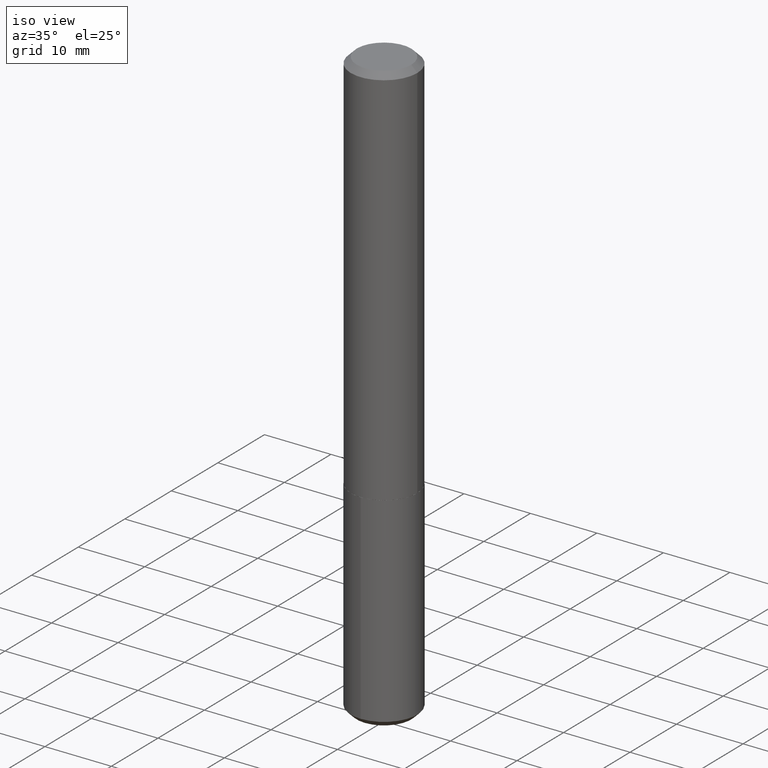
[diagram: clean part render]
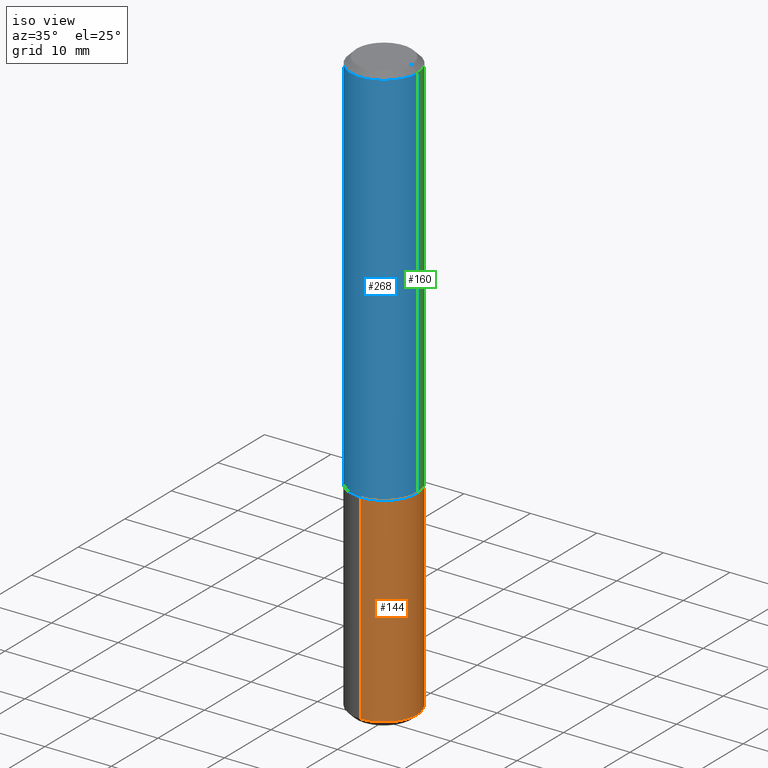
[diagram: same view with three faces highlighted in distinct colors, each labeled with its STEP entity id]
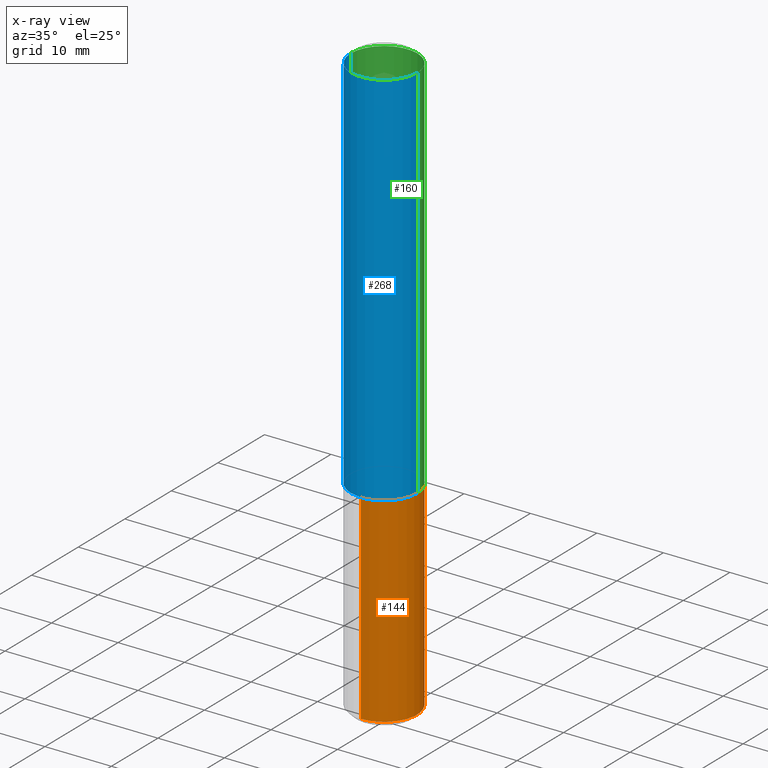
[diagram: x-ray of the same camera — body ghosted, the three highlighted faces saturated]
A machine part, iso view with three faces highlighted in distinct colors.
The next image is the same camera in x-ray (body ghosted, the three faces saturated) — at least one of them is partly hidden behind the body in this view.
Their STEP definitions:

[orange] entity #144 — the highlighted cylindrical surface (partial cylindrical patch) has radius 5 mm, axis along (-0, 0, 1).
#3 = VERTEX_POINT ( 'NONE', #251 ) ;
#15 = EDGE_CURVE ( 'NONE', #145, #243, #375, .T. ) ;
#20 = EDGE_CURVE ( 'NONE', #145, #3, #345, .T. ) ;
#22 = AXIS2_PLACEMENT_3D ( 'NONE', #86, #404, #312 ) ;
#23 = DIRECTION ( 'NONE',  ( -2.451305406586192978E-29, 3.483122994870167634E-15, 1.000000000000000000 ) ) ;
#28 = DIRECTION ( 'NONE',  ( -2.451305406586193258E-29, 3.483122994870168029E-15, 1.000000000000000000 ) ) ;
#41 = ORIENTED_EDGE ( 'NONE', *, *, #15, .T. ) ;
#47 = ORIENTED_EDGE ( 'NONE', *, *, #380, .T. ) ;
#79 = EDGE_CURVE ( 'NONE', #3, #307, #137, .T. ) ;
#86 = CARTESIAN_POINT ( 'NONE',  ( 8.490006031551072042E-29, -1.210169079953302144E-14, -3.468899999999999650 ) ) ;
#89 = LINE ( 'NONE', #226, #236 ) ;
#98 = VECTOR ( 'NONE', #122, 39.37007874015748143 ) ;
#122 = DIRECTION ( 'NONE',  ( -2.451305406586192978E-29, 3.483122994870167634E-15, 1.000000000000000000 ) ) ;
#137 = CIRCLE ( 'NONE', #235, 0.1968500000000000250 ) ;
#144 = ADVANCED_FACE ( 'NONE', ( #161 ), #290, .T. ) ;
#145 = VERTEX_POINT ( 'NONE', #326 ) ;
#161 = FACE_OUTER_BOUND ( 'NONE', #280, .T. ) ;
#162 = CARTESIAN_POINT ( 'NONE',  ( 5.583983472043140562E-29, -7.972448489114438042E-15, -2.283399999999999874 ) ) ;
#171 = CARTESIAN_POINT ( 'NONE',  ( 1.398703375343841999E-15, 0.1968499999999920591, -2.283400000000000762 ) ) ;
#187 = CARTESIAN_POINT ( 'NONE',  ( -1.374596203102485599E-15, -0.1968500000000079631, -2.283399999999998986 ) ) ;
#194 = DIRECTION ( 'NONE',  ( -6.982962677686265133E-15, -1.000000000000000000, 4.163344669033674845E-15 ) ) ;
#226 = CARTESIAN_POINT ( 'NONE',  ( 1.398703375343812811E-15, 0.1968499999999920591, -2.283400000000000762 ) ) ;
#235 = AXIS2_PLACEMENT_3D ( 'NONE', #259, #257, #315 ) ;
#236 = VECTOR ( 'NONE', #23, 39.37007874015748143 ) ;
#243 = VERTEX_POINT ( 'NONE', #244 ) ;
#244 = CARTESIAN_POINT ( 'NONE',  ( 1.398703375343841012E-15, 0.1968499999999877847, -3.468900000000000095 ) ) ;
#251 = CARTESIAN_POINT ( 'NONE',  ( -1.374596203102485599E-15, -0.1968500000000079631, -2.283399999999998986 ) ) ;
#257 = DIRECTION ( 'NONE',  ( -2.451305406586193258E-29, 3.483122994870168029E-15, 1.000000000000000000 ) ) ;
#259 = CARTESIAN_POINT ( 'NONE',  ( 5.583983472043140562E-29, -7.972448489114438042E-15, -2.283399999999999874 ) ) ;
#280 = EDGE_LOOP ( 'NONE', ( #41, #47, #309, #304 ) ) ;
#290 = CYLINDRICAL_SURFACE ( 'NONE', #338, 0.1968500000000000250 ) ;
#304 = ORIENTED_EDGE ( 'NONE', *, *, #20, .F. ) ;
#307 = VERTEX_POINT ( 'NONE', #171 ) ;
#309 = ORIENTED_EDGE ( 'NONE', *, *, #79, .F. ) ;
#312 = DIRECTION ( 'NONE',  ( -6.982962677686265133E-15, -1.000000000000000000, 2.775563112689116301E-15 ) ) ;
#315 = DIRECTION ( 'NONE',  ( -6.982962677686265133E-15, -1.000000000000000000, 4.163344669033674845E-15 ) ) ;
#326 = CARTESIAN_POINT ( 'NONE',  ( -1.374596203102457595E-15, -0.1968500000000122374, -3.468899999999999206 ) ) ;
#338 = AXIS2_PLACEMENT_3D ( 'NONE', #162, #28, #194 ) ;
#345 = LINE ( 'NONE', #187, #98 ) ;
#375 = CIRCLE ( 'NONE', #22, 0.1968500000000000250 ) ;
#380 = EDGE_CURVE ( 'NONE', #243, #307, #89, .T. ) ;
#404 = DIRECTION ( 'NONE',  ( -2.451305406586193258E-29, 3.483122994870168029E-15, 1.000000000000000000 ) ) ;

[blue] entity #268 — the highlighted cylindrical surface (partial cylindrical patch) has radius 5 mm, axis along (-0, 0, 1).
#2 = FACE_OUTER_BOUND ( 'NONE', #52, .T. ) ;
#11 = VERTEX_POINT ( 'NONE', #373 ) ;
#36 = CARTESIAN_POINT ( 'NONE',  ( 5.582760737640047761E-29, -7.970702748445015750E-15, -2.282899999999999707 ) ) ;
#49 = EDGE_CURVE ( 'NONE', #372, #371, #354, .T. ) ;
#52 = EDGE_LOOP ( 'NONE', ( #153, #175, #146, #284 ) ) ;
#56 = CARTESIAN_POINT ( 'NONE',  ( -0.1968500000000001915, 1.398703375343758577E-15, -9.682923725166790684E-30 ) ) ;
#77 = DIRECTION ( 'NONE',  ( 1.000000000000000000, -6.982962677686265922E-15, 0.000000000000000000 ) ) ;
#96 = DIRECTION ( 'NONE',  ( -2.445468806185136877E-29, 3.491481338843145188E-15, 1.000000000000000000 ) ) ;
#117 = EDGE_CURVE ( 'NONE', #11, #219, #347, .T. ) ;
#139 = CIRCLE ( 'NONE', #346, 0.1968500000000000250 ) ;
#146 = ORIENTED_EDGE ( 'NONE', *, *, #117, .T. ) ;
#148 = AXIS2_PLACEMENT_3D ( 'NONE', #275, #366, #369 ) ;
#153 = ORIENTED_EDGE ( 'NONE', *, *, #49, .F. ) ;
#174 = CARTESIAN_POINT ( 'NONE',  ( 8.559140821648035612E-31, -1.222018468595109198E-16, -0.03500000000000023231 ) ) ;
#175 = ORIENTED_EDGE ( 'NONE', *, *, #306, .T. ) ;
#179 = DIRECTION ( 'NONE',  ( -2.445468806185136597E-29, 3.491481338843145583E-15, 1.000000000000000000 ) ) ;
#183 = VECTOR ( 'NONE', #96, 39.37007874015748143 ) ;
#191 = VECTOR ( 'NONE', #323, 39.37007874015748143 ) ;
#203 = AXIS2_PLACEMENT_3D ( 'NONE', #36, #179, #299 ) ;
#219 = VERTEX_POINT ( 'NONE', #340 ) ;
#252 = CARTESIAN_POINT ( 'NONE',  ( -0.1968500000000000250, -2.647748922308503107E-15, -0.03500000000000023231 ) ) ;
#268 = ADVANCED_FACE ( 'NONE', ( #2 ), #359, .T. ) ;
#275 = CARTESIAN_POINT ( 'NONE',  ( 0.000000000000000000, 0.000000000000000000, 0.000000000000000000 ) ) ;
#284 = ORIENTED_EDGE ( 'NONE', *, *, #328, .F. ) ;
#299 = DIRECTION ( 'NONE',  ( 1.000000000000000000, -6.982962677686261977E-15, 0.000000000000000000 ) ) ;
#302 = DIRECTION ( 'NONE',  ( -2.445468806185136597E-29, 3.491481338843145583E-15, 1.000000000000000000 ) ) ;
#306 = EDGE_CURVE ( 'NONE', #372, #11, #393, .T. ) ;
#323 = DIRECTION ( 'NONE',  ( -2.445468806185136877E-29, 3.491481338843145188E-15, 1.000000000000000000 ) ) ;
#328 = EDGE_CURVE ( 'NONE', #371, #219, #139, .T. ) ;
#340 = CARTESIAN_POINT ( 'NONE',  ( 0.1968500000000000250, -1.496798049962052577E-15, -0.03500000000000023231 ) ) ;
#346 = AXIS2_PLACEMENT_3D ( 'NONE', #174, #302, #77 ) ;
#347 = LINE ( 'NONE', #411, #191 ) ;
#354 = LINE ( 'NONE', #56, #183 ) ;
#359 = CYLINDRICAL_SURFACE ( 'NONE', #148, 0.1968500000000001915 ) ;
#366 = DIRECTION ( 'NONE',  ( -2.445468806185136597E-29, 3.491481338843145583E-15, 1.000000000000000000 ) ) ;
#369 = DIRECTION ( 'NONE',  ( 1.000000000000000000, -6.982962677686266711E-15, 4.876176775795935793E-29 ) ) ;
#371 = VERTEX_POINT ( 'NONE', #252 ) ;
#372 = VERTEX_POINT ( 'NONE', #376 ) ;
#373 = CARTESIAN_POINT ( 'NONE',  ( 0.1968500000000003303, -9.345298951547558936E-15, -2.282899999999999707 ) ) ;
#376 = CARTESIAN_POINT ( 'NONE',  ( -0.1968500000000003303, -6.571999373101257173E-15, -2.282899999999999707 ) ) ;
#393 = CIRCLE ( 'NONE', #203, 0.1968500000000003303 ) ;
#411 = CARTESIAN_POINT ( 'NONE',  ( 0.1968500000000001915, -1.374596203102542989E-15, 9.598753983154309266E-30 ) ) ;

[green] entity #160 — the highlighted cylindrical surface (partial cylindrical patch) has radius 5 mm, axis along (-0, 0, 1).
#11 = VERTEX_POINT ( 'NONE', #373 ) ;
#37 = ORIENTED_EDGE ( 'NONE', *, *, #133, .F. ) ;
#49 = EDGE_CURVE ( 'NONE', #372, #371, #354, .T. ) ;
#56 = CARTESIAN_POINT ( 'NONE',  ( -0.1968500000000001915, 1.398703375343758577E-15, -9.682923725166790684E-30 ) ) ;
#96 = DIRECTION ( 'NONE',  ( -2.445468806185136877E-29, 3.491481338843145188E-15, 1.000000000000000000 ) ) ;
#101 = DIRECTION ( 'NONE',  ( 1.000000000000000000, -6.982962677686266711E-15, 4.876176775795935793E-29 ) ) ;
#113 = EDGE_CURVE ( 'NONE', #11, #372, #325, .T. ) ;
#117 = EDGE_CURVE ( 'NONE', #11, #219, #347, .T. ) ;
#128 = CARTESIAN_POINT ( 'NONE',  ( 0.000000000000000000, 0.000000000000000000, 0.000000000000000000 ) ) ;
#133 = EDGE_CURVE ( 'NONE', #219, #371, #333, .T. ) ;
#155 = CARTESIAN_POINT ( 'NONE',  ( 5.582760737640047761E-29, -7.970702748445015750E-15, -2.282899999999999707 ) ) ;
#160 = ADVANCED_FACE ( 'NONE', ( #408 ), #295, .T. ) ;
#177 = ORIENTED_EDGE ( 'NONE', *, *, #113, .T. ) ;
#183 = VECTOR ( 'NONE', #96, 39.37007874015748143 ) ;
#191 = VECTOR ( 'NONE', #323, 39.37007874015748143 ) ;
#200 = AXIS2_PLACEMENT_3D ( 'NONE', #382, #287, #229 ) ;
#209 = EDGE_LOOP ( 'NONE', ( #177, #401, #37, #378 ) ) ;
#219 = VERTEX_POINT ( 'NONE', #340 ) ;
#229 = DIRECTION ( 'NONE',  ( 1.000000000000000000, -6.982962677686265922E-15, 0.000000000000000000 ) ) ;
#252 = CARTESIAN_POINT ( 'NONE',  ( -0.1968500000000000250, -2.647748922308503107E-15, -0.03500000000000023231 ) ) ;
#286 = AXIS2_PLACEMENT_3D ( 'NONE', #128, #389, #101 ) ;
#287 = DIRECTION ( 'NONE',  ( -2.445468806185136597E-29, 3.491481338843145583E-15, 1.000000000000000000 ) ) ;
#295 = CYLINDRICAL_SURFACE ( 'NONE', #286, 0.1968500000000001915 ) ;
#318 = DIRECTION ( 'NONE',  ( -2.445468806185136597E-29, 3.491481338843145583E-15, 1.000000000000000000 ) ) ;
#323 = DIRECTION ( 'NONE',  ( -2.445468806185136877E-29, 3.491481338843145188E-15, 1.000000000000000000 ) ) ;
#325 = CIRCLE ( 'NONE', #368, 0.1968500000000003303 ) ;
#333 = CIRCLE ( 'NONE', #200, 0.1968500000000000250 ) ;
#340 = CARTESIAN_POINT ( 'NONE',  ( 0.1968500000000000250, -1.496798049962052577E-15, -0.03500000000000023231 ) ) ;
#347 = LINE ( 'NONE', #411, #191 ) ;
#354 = LINE ( 'NONE', #56, #183 ) ;
#368 = AXIS2_PLACEMENT_3D ( 'NONE', #155, #318, #413 ) ;
#371 = VERTEX_POINT ( 'NONE', #252 ) ;
#372 = VERTEX_POINT ( 'NONE', #376 ) ;
#373 = CARTESIAN_POINT ( 'NONE',  ( 0.1968500000000003303, -9.345298951547558936E-15, -2.282899999999999707 ) ) ;
#376 = CARTESIAN_POINT ( 'NONE',  ( -0.1968500000000003303, -6.571999373101257173E-15, -2.282899999999999707 ) ) ;
#378 = ORIENTED_EDGE ( 'NONE', *, *, #117, .F. ) ;
#382 = CARTESIAN_POINT ( 'NONE',  ( 8.559140821648035612E-31, -1.222018468595109198E-16, -0.03500000000000023231 ) ) ;
#389 = DIRECTION ( 'NONE',  ( -2.445468806185136597E-29, 3.491481338843145583E-15, 1.000000000000000000 ) ) ;
#401 = ORIENTED_EDGE ( 'NONE', *, *, #49, .T. ) ;
#408 = FACE_OUTER_BOUND ( 'NONE', #209, .T. ) ;
#411 = CARTESIAN_POINT ( 'NONE',  ( 0.1968500000000001915, -1.374596203102542989E-15, 9.598753983154309266E-30 ) ) ;
#413 = DIRECTION ( 'NONE',  ( 1.000000000000000000, -6.982962677686261977E-15, 0.000000000000000000 ) ) ;